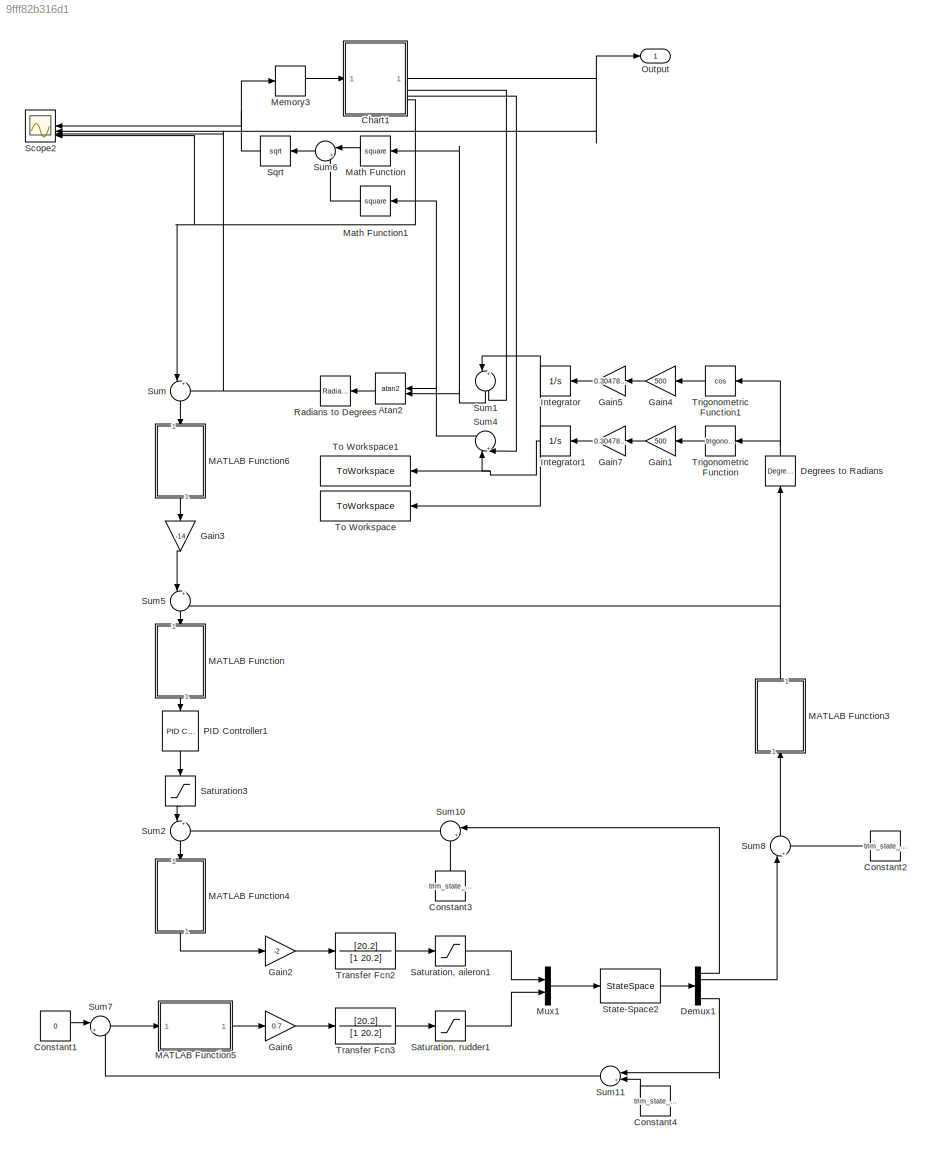
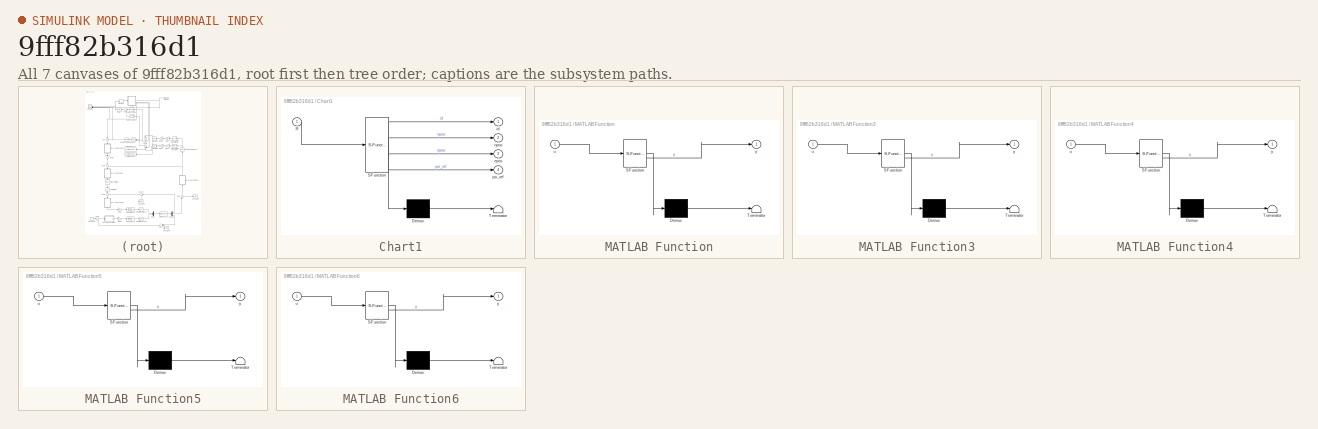
[diagram: thumbnail index - all 7 canvases of the model, root first then tree order]
MODEL slx_9fff82b316d1
KIND model
CONFIG AbsTol = auto
CONFIG EnableMultiTasking = off
CONFIG FixedStep = auto
CONFIG MaxStep = auto
CONFIG MinStep = auto
CONFIG RelTol = 1e-3
CONFIG SampleTimeConstraint = Unconstrained
CONFIG SolverName = ode45
CONFIG StartTime = 0.0
CONFIG StopTime = 800
BLOCK [Trigonometry] Atan2
  Operator = atan2
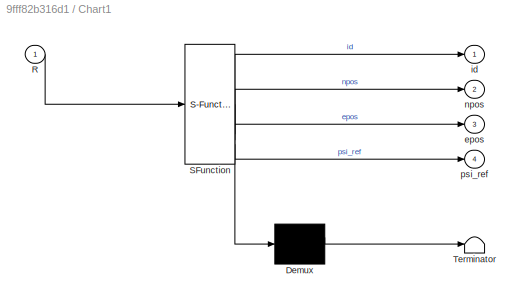
BLOCK [SubSystem] Chart1
  ErrorFcn = Stateflow.Translate.translate
  PermitHierarchicalResolution = ExplicitOnly
  SFBlockType = Chart
  TreatAsAtomicUnit = on
BLOCK [Demux] Chart1/ Demux 
  Outputs = 1
BLOCK [S-Function] Chart1/ SFunction 
  EnableBusSupport = off
  FunctionName = sf_sfun
  PortCounts = [1 5]
  SFcnIsStateOwnerBlock = off
  SFunctionDeploymentMode = off
  Tag = Stateflow S-Function 3
BLOCK [Terminator] Chart1/ Terminator 
BLOCK [Inport] Chart1/R
BLOCK [Outport] Chart1/epos
  Port = 3
BLOCK [Outport] Chart1/id
BLOCK [Outport] Chart1/npos
  Port = 2
BLOCK [Outport] Chart1/psi_ref
  Port = 4
BLOCK [Constant] Constant1
  Value = 0
BLOCK [Constant] Constant2
  NameLocation = top
  Value = trim_state_lo(6)
BLOCK [Constant] Constant3
  NameLocation = right
  Value = trim_state_lo(4)
BLOCK [Constant] Constant4
  NameLocation = top
  Value = trim_state_lo(9)
BLOCK [Reference] Degrees to Radians  REF=simulink_extras/Transformations/Degrees to
Radians
  NameLocation = right
  SourceBlock = simulink_extras/Transformations/Degrees to\nRadians
  SourceType = DegreesToRadians
BLOCK [Demux] Demux1
  Outputs = 5
BLOCK [Gain] Gain1
  Gain = 500
BLOCK [Gain] Gain2
  Gain = -2
BLOCK [Gain] Gain3
  Gain = -14
  NameLocation = left
BLOCK [Gain] Gain4
  Gain = 500
BLOCK [Gain] Gain5
  Gain = 0.30478512648
BLOCK [Gain] Gain6
  Gain = 0.7
  NameLocation = top
BLOCK [Gain] Gain7
  Gain = 0.30478512648
BLOCK [Integrator] Integrator
  InitialCondition = -20000
BLOCK [Integrator] Integrator1
  InitialCondition = -20000
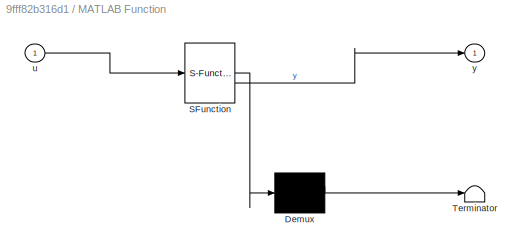
BLOCK [SubSystem] MATLAB Function
  ErrorFcn = Stateflow.Translate.translate
  NameLocation = left
  PermitHierarchicalResolution = ExplicitOnly
  SFBlockType = MATLAB Function
  TreatAsAtomicUnit = on
BLOCK [Demux] MATLAB Function/ Demux 
  Outputs = 1
BLOCK [S-Function] MATLAB Function/ SFunction 
  EnableBusSupport = off
  FunctionName = sf_sfun
  PortCounts = [1 2]
  SFcnIsStateOwnerBlock = off
  SFunctionDeploymentMode = off
  Tag = Stateflow S-Function 2
BLOCK [Terminator] MATLAB Function/ Terminator 
BLOCK [Inport] MATLAB Function/u
BLOCK [Outport] MATLAB Function/y
BLOCK [SubSystem] MATLAB Function3
  ErrorFcn = Stateflow.Translate.translate
  NameLocation = left
  PermitHierarchicalResolution = ExplicitOnly
  SFBlockType = MATLAB Function
  TreatAsAtomicUnit = on
BLOCK [Demux] MATLAB Function3/ Demux 
  Outputs = 1
BLOCK [S-Function] MATLAB Function3/ SFunction 
  EnableBusSupport = off
  FunctionName = sf_sfun
  PortCounts = [1 2]
  SFcnIsStateOwnerBlock = off
  SFunctionDeploymentMode = off
  Tag = Stateflow S-Function 5
BLOCK [Terminator] MATLAB Function3/ Terminator 
BLOCK [Inport] MATLAB Function3/u
BLOCK [Outport] MATLAB Function3/y
BLOCK [SubSystem] MATLAB Function4
  ErrorFcn = Stateflow.Translate.translate
  NameLocation = left
  PermitHierarchicalResolution = ExplicitOnly
  SFBlockType = MATLAB Function
  TreatAsAtomicUnit = on
BLOCK [Demux] MATLAB Function4/ Demux 
  Outputs = 1
BLOCK [S-Function] MATLAB Function4/ SFunction 
  EnableBusSupport = off
  FunctionName = sf_sfun
  PortCounts = [1 2]
  SFcnIsStateOwnerBlock = off
  SFunctionDeploymentMode = off
  Tag = Stateflow S-Function 6
BLOCK [Terminator] MATLAB Function4/ Terminator 
BLOCK [Inport] MATLAB Function4/u
BLOCK [Outport] MATLAB Function4/y
BLOCK [SubSystem] MATLAB Function5
  ErrorFcn = Stateflow.Translate.translate
  NameLocation = top
  PermitHierarchicalResolution = ExplicitOnly
  SFBlockType = MATLAB Function
  TreatAsAtomicUnit = on
BLOCK [Demux] MATLAB Function5/ Demux 
  Outputs = 1
BLOCK [S-Function] MATLAB Function5/ SFunction 
  EnableBusSupport = off
  FunctionName = sf_sfun
  PortCounts = [1 2]
  SFcnIsStateOwnerBlock = off
  SFunctionDeploymentMode = off
  Tag = Stateflow S-Function 7
BLOCK [Terminator] MATLAB Function5/ Terminator 
BLOCK [Inport] MATLAB Function5/u
BLOCK [Outport] MATLAB Function5/y
BLOCK [SubSystem] MATLAB Function6
  ErrorFcn = Stateflow.Translate.translate
  NameLocation = right
  PermitHierarchicalResolution = ExplicitOnly
  SFBlockType = MATLAB Function
  TreatAsAtomicUnit = on
BLOCK [Demux] MATLAB Function6/ Demux 
  Outputs = 1
BLOCK [S-Function] MATLAB Function6/ SFunction 
  EnableBusSupport = off
  FunctionName = sf_sfun
  PortCounts = [1 2]
  SFcnIsStateOwnerBlock = off
  SFunctionDeploymentMode = off
  Tag = Stateflow S-Function 8
BLOCK [Terminator] MATLAB Function6/ Terminator 
BLOCK [Inport] MATLAB Function6/u
BLOCK [Outport] MATLAB Function6/y
BLOCK [Math] Math Function
  Operator = square
BLOCK [Math] Math Function1
  Operator = square
BLOCK [Memory] Memory3
  NameLocation = top
BLOCK [Mux] Mux1
  DisplayOption = bar
  Inputs = 2
BLOCK [Outport] Output
BLOCK [Reference] PID Controller1  REF=slpidlib/PID Controller
  LibrarySourceBlock = simulink/Continuous/PID Controller
  NameLocation = left
  SourceBlock = slpidlib/PID Controller
  SourceType = PID 1dof
BLOCK [Reference] Radians to Degrees  REF=simulink_extras/Transformations/Radians
to Degrees
  SourceBlock = simulink_extras/Transformations/Radians\nto Degrees
  SourceType = RadiansToDegrees
BLOCK [Saturate] Saturation, aileron1
  LowerLimit = -21.5
  UpperLimit = 21.5
BLOCK [Saturate] Saturation, rudder1
  LowerLimit = -30
  UpperLimit = 30
BLOCK [Saturate] Saturation3
  LowerLimit = -60
  NameLocation = left
  UpperLimit = 60
BLOCK [Scope] Scope2
  ActiveDisplayYMaximum = 56507.141761770275
  ActiveDisplayYMinimum = -737.62821195600372
  DataLoggingVariableName = ScopeData2
  Floating = off
  GraphicalSettings = {"Style":{"BackgroundColor":[0.12941176470588237,0.12941176470588237,0.12941176470588237],"AxesColor":[0.07058823529411765,0.07058823529411765,0.07058823529411765],"LabelsColor":[0.8509803921568627,0.8509803921568627,0.8509803921568627],"PreserveColors":false,"Visible":[true,true,true,true],"LineStyle":["-","-","-","-"],"LineWidth":[1.5,1.5,1.5,1.5],"BarWidth":[0.9,0.9,0.9,0.9],"LineColor":["auto"...<+2991ch>
  LayoutDimensionsString = [1,3]
  MultipleDisplayCache = [{"MaxYLimMag":56507.141761770275,"MaxYLimReal":56507.141761770275,"MinYLimMag":0,"MinYLimReal":-737.62821195600372,"PlotAsMagnitudePhase":false,"ShowGrid":true,"ShowLegend":false,"Title":"%<SignalLabel>","YLabel":""},{"MaxYLimMag":5.5,"MaxYLimReal":5.5,"MinYLimMag":0.50000000000000011,"MinYLimReal":0.50000000000000011,"PlotAsMagnitudePhase":false,"ShowGrid":true,"ShowLegend":false,"Title":"%<Sign...<+240ch>
  NumInputPorts = 4
  ScopeFrameLocation = window
  WasSavedAsWebScope = on
  WindowPosition = [150.000000,161.000000,1216.000000,650.000000,]
BLOCK [Sqrt] Sqrt
BLOCK [StateSpace] State-Space2
  A = SS_red.A
  B = SS_red.B
  C = SS_red.C
  D = SS_red.D
  InitialCondition = 0
BLOCK [Sum] Sum
  Inputs = |+-
  NameLocation = left
BLOCK [Sum] Sum1
  Inputs = |+-
  NameLocation = right
BLOCK [Sum] Sum10
  Inputs = |++
  NameLocation = top
BLOCK [Sum] Sum11
  Inputs = |++
  NameLocation = top
BLOCK [Sum] Sum2
  Inputs = |+-
  NameLocation = right
BLOCK [Sum] Sum4
  Inputs = |+-
  NameLocation = left
BLOCK [Sum] Sum5
  Inputs = |+-
  NameLocation = right
BLOCK [Sum] Sum6
  Inputs = |++
BLOCK [Sum] Sum7
  Inputs = |+-
  NameLocation = top
BLOCK [Sum] Sum8
  Inputs = |++
  NameLocation = right
BLOCK [ToWorkspace] To Workspace
  FixptAsFi = on
  MaxDataPoints = inf
  SampleTime = -1
  SaveFormat = Timeseries
  VariableName = NorthPos
BLOCK [ToWorkspace] To Workspace1
  FixptAsFi = on
  MaxDataPoints = inf
  SampleTime = -1
  SaveFormat = Timeseries
  VariableName = EastPos
BLOCK [TransferFcn] Transfer Fcn2
  Denominator = [1 20.2]
  Numerator = [20.2]
BLOCK [TransferFcn] Transfer Fcn3
  Denominator = [1 20.2]
  Numerator = [20.2]
BLOCK [Trigonometry] Trigonometric Function
  ApproximationMethod = CORDIC
  NameLocation = top
BLOCK [Trigonometry] Trigonometric Function1
  ApproximationMethod = CORDIC
  NameLocation = top
  Operator = cos
LINE Atan2:1 -> Radians to Degrees:1
NET Chart1:1 -> Output:1, Scope2:2
LINE Chart1:2 -> Sum1:2
LINE Chart1:3 -> Sum4:2
NET Chart1:4 -> Scope2:4, Sum:1
LINE Constant1:1 -> Sum7:1
LINE Constant2:1 -> Sum8:2
LINE Constant3:1 -> Sum10:2
LINE Constant4:1 -> Sum11:2
NET Degrees to Radians:1 -> Trigonometric Function1:1, Trigonometric Function:1
LINE Demux1:1 -> Sum10:1
LINE Demux1:2 -> Sum8:1
LINE Demux1:5 -> Sum11:1
LINE Gain1:1 -> Gain7:1
LINE Gain2:1 -> Transfer Fcn2:1
LINE Gain3:1 -> Sum5:1
LINE Gain4:1 -> Gain5:1
LINE Gain5:1 -> Integrator:1
LINE Gain6:1 -> Transfer Fcn3:1
LINE Gain7:1 -> Integrator1:1
NET Integrator1:1 -> Sum4:1, To Workspace1:1
NET Integrator:1 -> Sum1:1, To Workspace:1
NET MATLAB Function3:1 -> Degrees to Radians:1, Sum5:2
LINE MATLAB Function4:1 -> Gain2:1
LINE MATLAB Function5:1 -> Gain6:1
LINE MATLAB Function6:1 -> Gain3:1
LINE MATLAB Function:1 -> PID Controller1:1
LINE Math Function1:1 -> Sum6:2
LINE Math Function:1 -> Sum6:1
LINE Memory3:1 -> Chart1:1
LINE Mux1:1 -> State-Space2:1
LINE PID Controller1:1 -> Saturation3:1
NET Radians to Degrees:1 -> Scope2:3, Sum:2
LINE Saturation, aileron1:1 -> Mux1:1
LINE Saturation, rudder1:1 -> Mux1:2
LINE Saturation3:1 -> Sum2:1
NET Sqrt:1 -> Memory3:1, Scope2:1
LINE State-Space2:1 -> Demux1:1
LINE Sum10:1 -> Sum2:2
LINE Sum11:1 -> Sum7:2
NET Sum1:1 -> Atan2:2, Math Function:1
LINE Sum2:1 -> MATLAB Function4:1
NET Sum4:1 -> Atan2:1, Math Function1:1
LINE Sum5:1 -> MATLAB Function:1
LINE Sum6:1 -> Sqrt:1
LINE Sum7:1 -> MATLAB Function5:1
LINE Sum8:1 -> MATLAB Function3:1
LINE Sum:1 -> MATLAB Function6:1
LINE Transfer Fcn2:1 -> Saturation, aileron1:1
LINE Transfer Fcn3:1 -> Saturation, rudder1:1
LINE Trigonometric Function1:1 -> Gain4:1
LINE Trigonometric Function:1 -> Gain1:1
note: NET lines group one-source signal fan-out (src -> all destinations, sorted); 1:1 wires keep LINE
CHART MATLAB Function states=1 transitions=1
  STATE_LABEL 'eML_blk_kernel()'
  STATE_LABEL 'SCRIPT:\nfunction y = wrap180(u)\n% Wrap angle to [-180, 180)\n\ny = mod(u + 180, 360) - 180;\n'
CHART Chart1 states=5 transitions=6
  STATE_LABEL 'beacon1\nid=1;\nnpos=15000;\nepos=15000;\npsi_ref=45;'
  STATE_LABEL 'beacon2\nid=2;\nnpos=0;\nepos=30000;\npsi_ref=135;'
  STATE_LABEL 'beacon3\nid=3;\nnpos=-15000;\nepos=30000;\npsi_ref=180;'
  STATE_LABEL 'beacon4\nid=4;\nnpos=-30000;\nepos=45000;\npsi_ref=135;'
  STATE_LABEL 'beacon5\nid=5;\nnpos=0;\nepos=0;\npsi_ref=0;'
CHART MATLAB Function3 states=1 transitions=1
  STATE_LABEL 'eML_blk_kernel()'
  STATE_LABEL 'SCRIPT:\nfunction y = wrap180(u)\n% Wrap angle to [-180, 180)\n\ny = mod(u + 180, 360) - 180;\n'
CHART MATLAB Function4 states=1 transitions=1
  STATE_LABEL 'eML_blk_kernel()'
  STATE_LABEL 'SCRIPT:\nfunction y = wrap180(u)\n% Wrap angle to [-180, 180)\n\ny = mod(u + 180, 360) - 180;\n'
CHART MATLAB Function5 states=1 transitions=1
  STATE_LABEL 'eML_blk_kernel()'
  STATE_LABEL 'SCRIPT:\nfunction y = wrap180(u)\n% Wrap angle to [-180, 180)\n\ny = mod(u + 180, 360) - 180;\n'
CHART MATLAB Function6 states=1 transitions=1
  STATE_LABEL 'eML_blk_kernel()'
  STATE_LABEL 'SCRIPT:\nfunction y = wrap180(u)\n% Wrap angle to [-180, 180)\n\ny = mod(u + 180, 360) - 180;\n'
CHART  states=0 transitions=0
CHART  states=0 transitions=0
CHART  states=0 transitions=0
CHART  states=0 transitions=0
CHART  states=0 transitions=0
CHART  states=0 transitions=0
